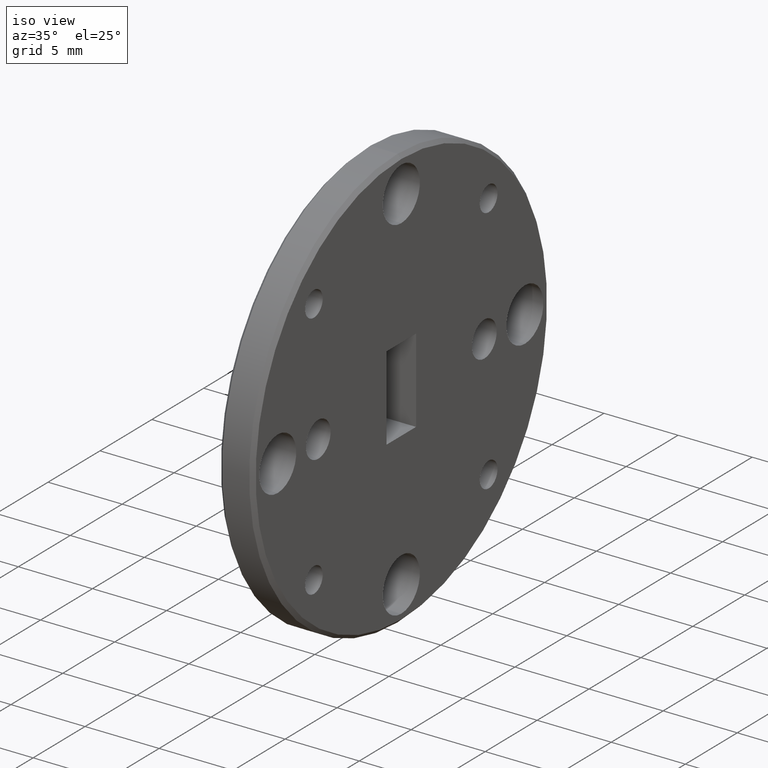
[diagram: clean part render]
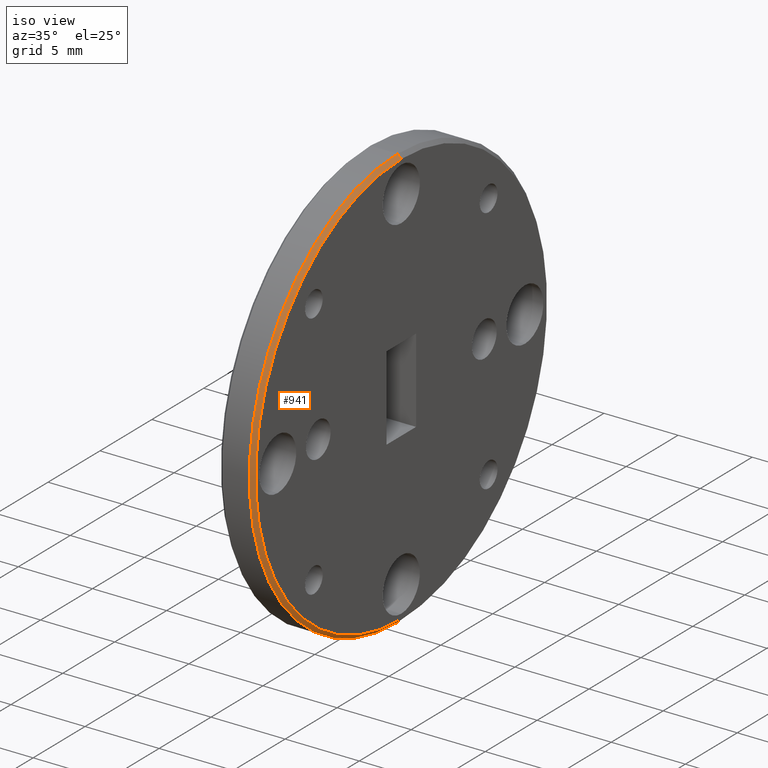
[diagram: same view with one face highlighted and labeled with its STEP entity id]
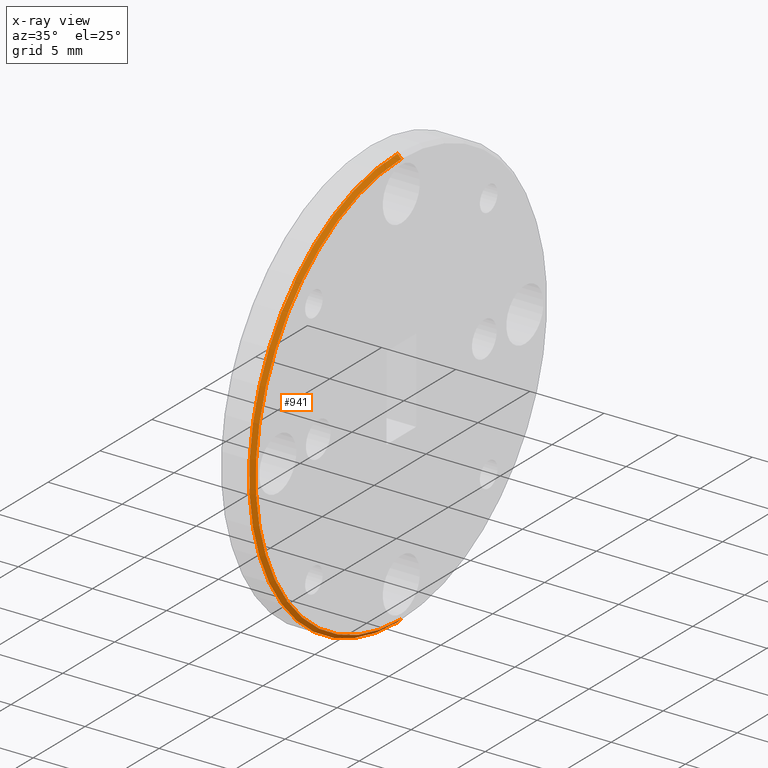
[diagram: x-ray of the same camera — body ghosted, the highlighted face saturated]
A machine part, iso view. The second image highlights one B-rep face of the part: STEP entity #941.
The next image is the same camera in x-ray: the body ghosted, the highlighted face saturated — about 0% of this face is hidden behind the body in this view.
In plain terms, the highlighted conical surface has half-angle 45 deg.
Its self-contained STEP definition (entity closure, byte-faithful):
#36 = EDGE_CURVE ( 'NONE', #704, #878, #49, .T. ) ;
#49 = CIRCLE ( 'NONE', #999, 0.5525000000000003200 ) ;
#78 = VERTEX_POINT ( 'NONE', #1052 ) ;
#120 = CARTESIAN_POINT ( 'NONE',  ( 0.09200000000000004000, 0.0000000000000000000, 0.5525000000000003200 ) ) ;
#124 = DIRECTION ( 'NONE',  ( -0.7071067811865474600, 0.0000000000000000000, 0.7071067811865474600 ) ) ;
#216 = CARTESIAN_POINT ( 'NONE',  ( 0.09200000000000004000, 0.0000000000000000000, 0.5525000000000003200 ) ) ;
#225 = AXIS2_PLACEMENT_3D ( 'NONE', #1036, #957, #691 ) ;
#235 = LINE ( 'NONE', #392, #906 ) ;
#241 = EDGE_LOOP ( 'NONE', ( #615, #297, #428, #1016 ) ) ;
#260 = EDGE_CURVE ( 'NONE', #78, #299, #614, .T. ) ;
#287 = DIRECTION ( 'NONE',  ( -1.000000000000000000, 0.0000000000000000000, 0.0000000000000000000 ) ) ;
#293 = CARTESIAN_POINT ( 'NONE',  ( 0.08200000000000035000, 6.888638245203861900E-017, 0.5625000000000000000 ) ) ;
#297 = ORIENTED_EDGE ( 'NONE', *, *, #36, .F. ) ;
#298 = DIRECTION ( 'NONE',  ( -0.7071067811865474600, 8.659560562354932900E-017, -0.7071067811865474600 ) ) ;
#299 = VERTEX_POINT ( 'NONE', #293 ) ;
#333 = DIRECTION ( 'NONE',  ( 1.000000000000000000, -0.0000000000000000000, -0.0000000000000000000 ) ) ;
#374 = DIRECTION ( 'NONE',  ( 0.0000000000000000000, 0.0000000000000000000, -1.000000000000000000 ) ) ;
#390 = CARTESIAN_POINT ( 'NONE',  ( 0.09200000000000004000, 6.827405905246495700E-017, -0.5525000000000003200 ) ) ;
#391 = EDGE_CURVE ( 'NONE', #878, #78, #235, .T. ) ;
#392 = CARTESIAN_POINT ( 'NONE',  ( 0.09200000000000004000, 6.766173565289130600E-017, -0.5525000000000003200 ) ) ;
#428 = ORIENTED_EDGE ( 'NONE', *, *, #445, .T. ) ;
#432 = LINE ( 'NONE', #216, #576 ) ;
#445 = EDGE_CURVE ( 'NONE', #704, #299, #432, .T. ) ;
#462 = AXIS2_PLACEMENT_3D ( 'NONE', #833, #287, #374 ) ;
#576 = VECTOR ( 'NONE', #124, 39.37007874015748900 ) ;
#605 = CARTESIAN_POINT ( 'NONE',  ( 0.09200000000000004000, 0.0000000000000000000, 0.0000000000000000000 ) ) ;
#614 = CIRCLE ( 'NONE', #462, 0.5625000000000000000 ) ;
#615 = ORIENTED_EDGE ( 'NONE', *, *, #391, .F. ) ;
#691 = DIRECTION ( 'NONE',  ( 0.0000000000000000000, 0.0000000000000000000, 1.000000000000000000 ) ) ;
#696 = DIRECTION ( 'NONE',  ( 0.0000000000000000000, 0.0000000000000000000, -1.000000000000000000 ) ) ;
#704 = VERTEX_POINT ( 'NONE', #120 ) ;
#833 = CARTESIAN_POINT ( 'NONE',  ( 0.08200000000000035000, 0.0000000000000000000, 0.0000000000000000000 ) ) ;
#878 = VERTEX_POINT ( 'NONE', #390 ) ;
#906 = VECTOR ( 'NONE', #298, 39.37007874015748900 ) ;
#941 = ADVANCED_FACE ( 'NONE', ( #1129 ), #1067, .T. ) ;
#957 = DIRECTION ( 'NONE',  ( -1.000000000000000000, 0.0000000000000000000, 0.0000000000000000000 ) ) ;
#999 = AXIS2_PLACEMENT_3D ( 'NONE', #605, #333, #696 ) ;
#1016 = ORIENTED_EDGE ( 'NONE', *, *, #260, .F. ) ;
#1036 = CARTESIAN_POINT ( 'NONE',  ( 0.09200000000000004000, 0.0000000000000000000, 0.0000000000000000000 ) ) ;
#1052 = CARTESIAN_POINT ( 'NONE',  ( 0.08200000000000035000, 0.0000000000000000000, -0.5625000000000000000 ) ) ;
#1067 = CONICAL_SURFACE ( 'NONE', #225, 0.5525000000000003200, 0.7853981633974482800 ) ;
#1129 = FACE_OUTER_BOUND ( 'NONE', #241, .T. ) ;